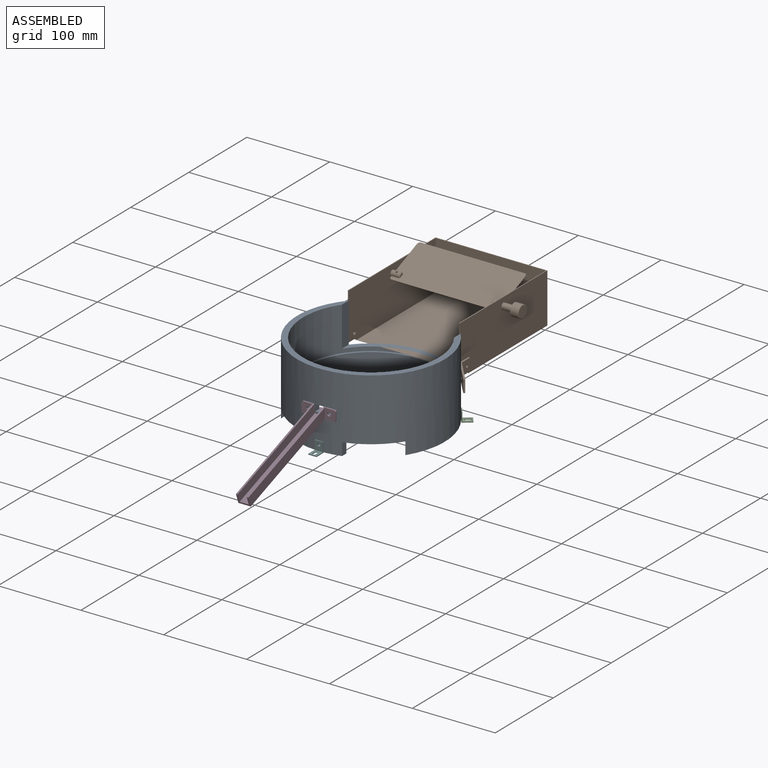
[diagram: assembled view]
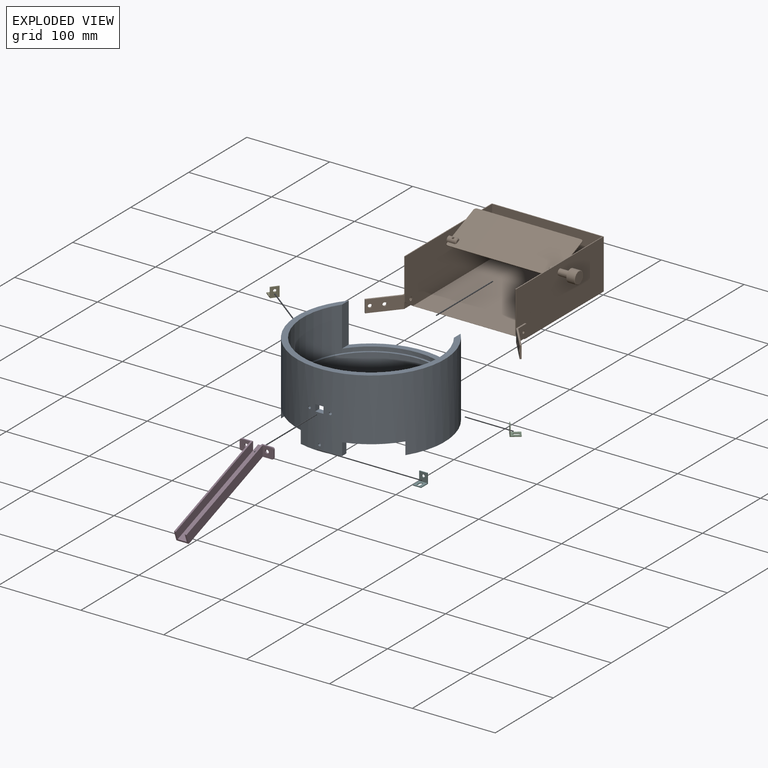
[diagram: exploded view]
GUIDED TOUR — MATED ASSEMBLY WITH SUBASSEMBLIES (Onshape document 57bd20f4359daa1161bebde2, AutoMate assembly 57bd20f4359daa1161bebde2_a42d9f43ae3d87441723566c_50306d4adee751ac4410a73a_default)

This assembly has 11 component occurrences arranged in 6 top-level units: 5 individual components plus 1 subassembly (S0). The tour has two levels: first the top level, where each subassembly is treated as one rigid unit; then each subassembly is toured internally in its own section (nesting deeper than one subassembly level is flattened into its subassembly's section).

Components are labeled P0..P10 across the whole record; subassembly units are labeled S0..S0. A mate is a constraint between two units; its type names the relative motion it leaves free:
  FASTENED — locks the two components together rigidly (no relative motion),
  REVOLUTE — leaves rotation about the listed axis free (a hinge).
Axis/direction vectors are unit vectors and 'through' points are millimeter coordinates, both in the assembly's world frame.

TOP-LEVEL MATES (between units; each subassembly's internal mates are listed in its own section)
  1. FASTENED "Fastened 1": P6 <-> P0, direction (0.000, 1.000, 0.000) through (-12.50, -88.38, 7.00) mm
  2. FASTENED "Fastened 4": P4 <-> P0, direction (-0.793, -0.609, 0.000) through (73.20, 50.81, -30.00) mm
  3. FASTENED "Fastened 5": P9 <-> P0, direction (0.000, 1.000, 0.000) through (0.00, -89.04, -30.00) mm
  4. FASTENED "Fastened 3": P8 <-> P0, direction (0.793, -0.609, 0.000) through (-73.20, 50.81, -30.00) mm

TOP-LEVEL ASSEMBLY ORDER
  1. P0 — the base component [order verified]
  2. S0 [order verified]
  3. P8 [order verified]
  4. P4 [order verified]
  5. P6 [order verified]
  6. P9 [order verified]
Order-tag legend:
  [order verified] — this step's position reverses a verified removal order: the component was checked to insert without passing through the ones already placed.

Of the 11 component occurrences, 4 carry the full construction recipe — the FeatureScript program that regenerates the part's solid from scratch; the rest are supplied as boundary geometry only. Each toured unit is shown spotlighted twice — assembled, then exploded with a leader line back to its socket (green = recipe-attached component, orange = geometry-only, blue = subassembly unit; the rest desaturated gray).
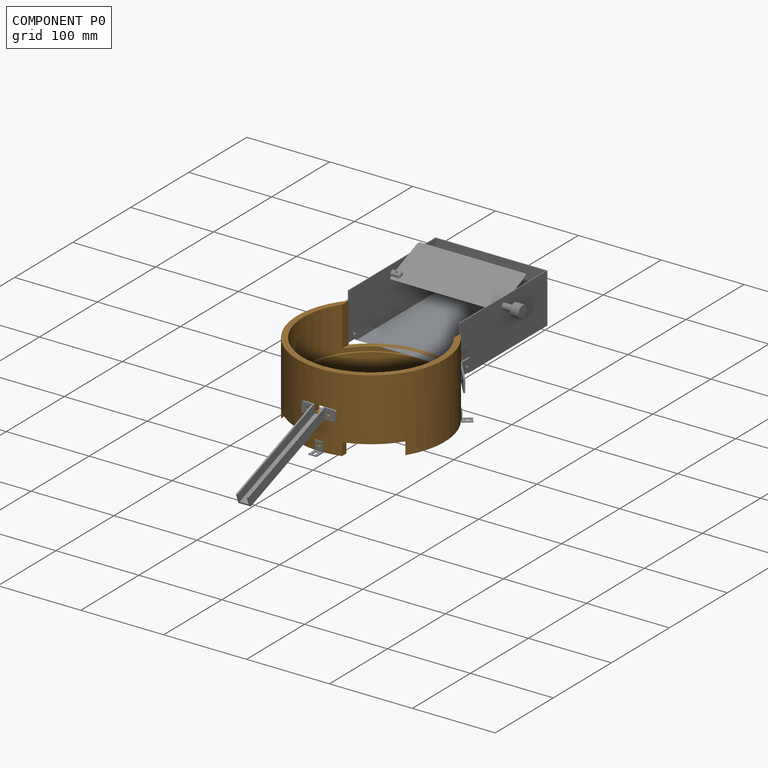
[diagram: component P0 — assembled]
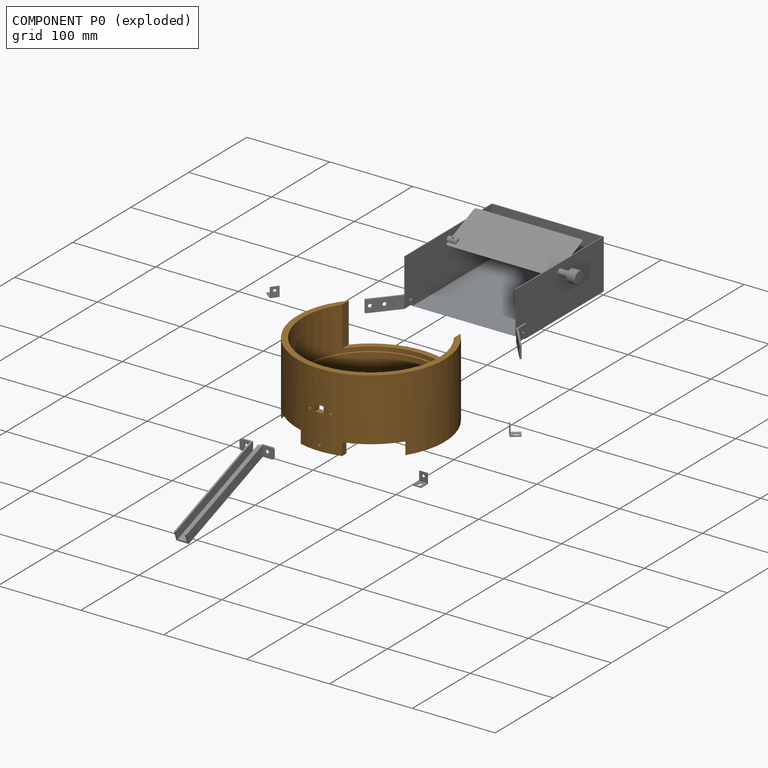
[diagram: component P0 — exploded]
COMPONENT P0 — geometry summary (no construction recipe available for this part):
  bounding box: 178.0 x 178.0 x 90.0 mm
  B-rep topology: 1 solid, 27 faces, 148 edges
  volume: 277693 mm^3 (10% of its bounding box)
  symmetry: mirror-symmetric across its x mid-plane
Held by: FASTENED mate "Fastened 1" to P6; FASTENED mate "Fastened 4" to P4; FASTENED mate "Fastened 5" to P9; FASTENED mate "Fastened 3" to P8.
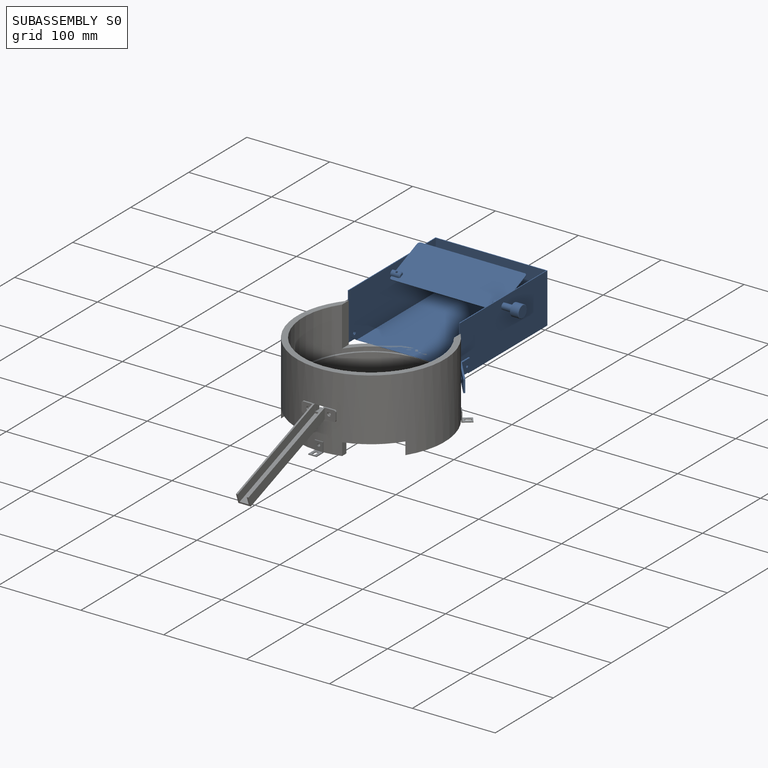
[diagram: subassembly S0 — assembled]
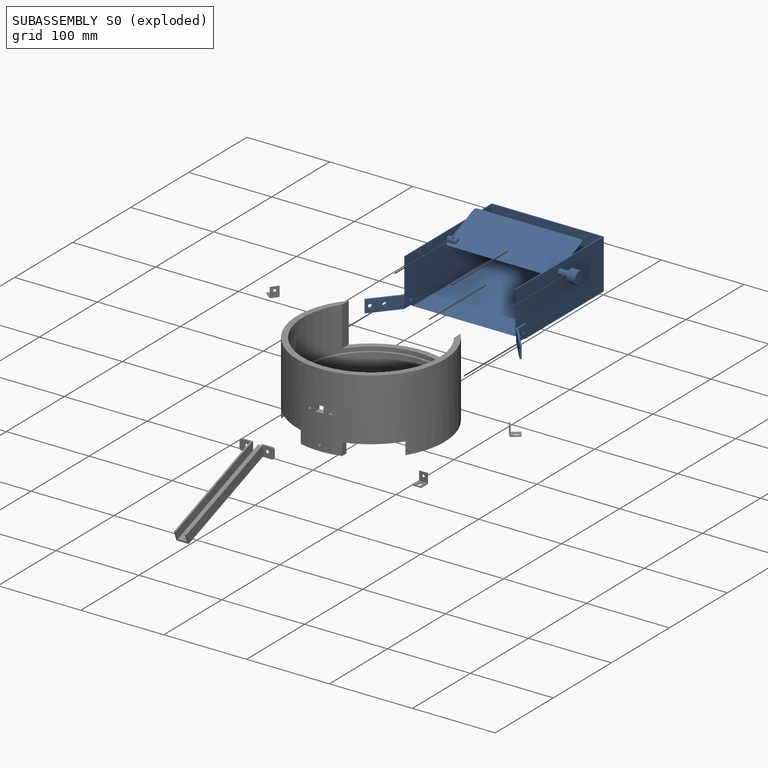
[diagram: subassembly S0 — exploded]
SUBASSEMBLY S0 — 6 components (P1, P2, P3, P5, P7, P10), of which 0 recipe-attached; toured below.
Held by: no mates (free).
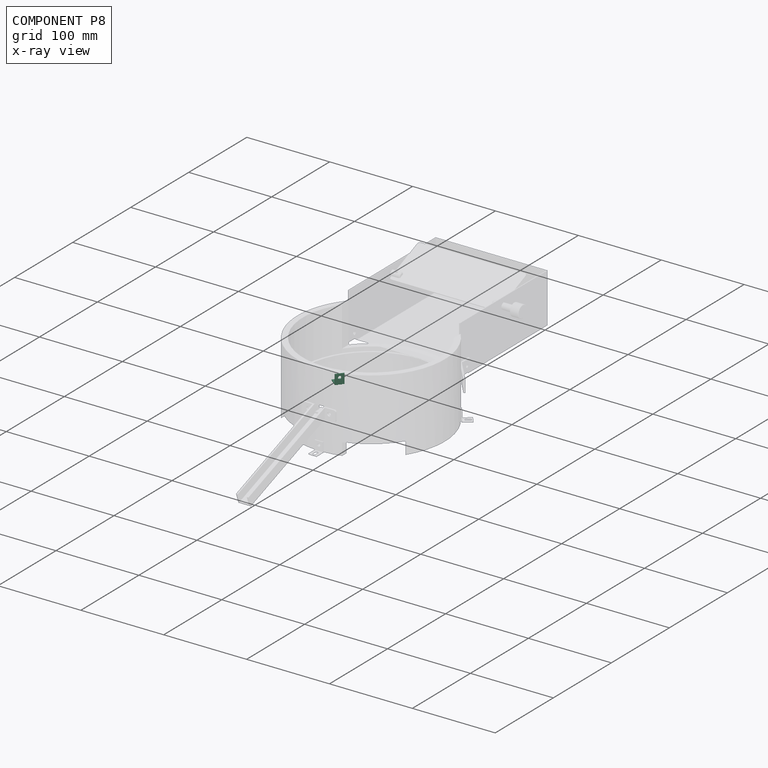
[diagram: component P8 — x-ray view]
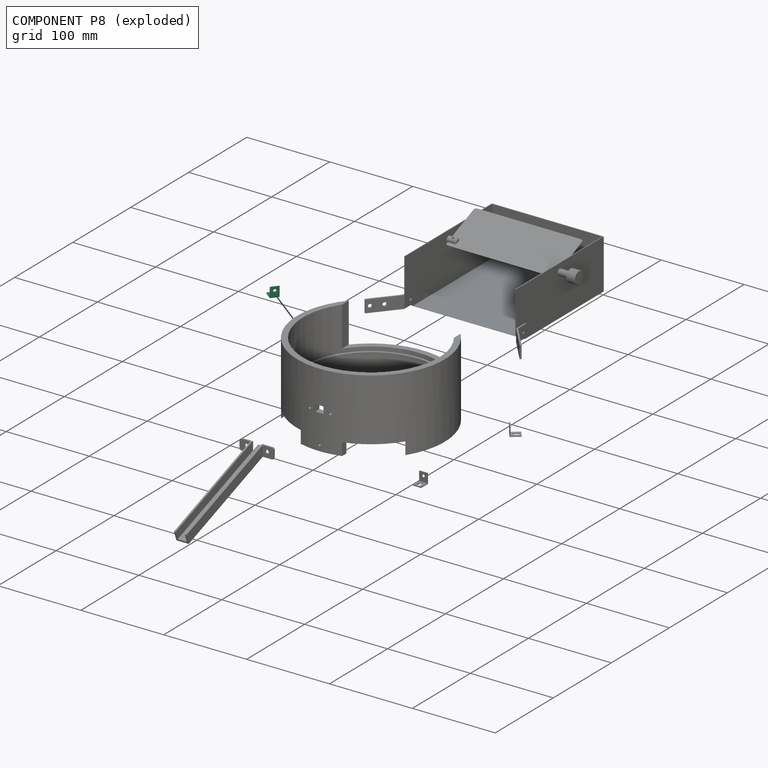
[diagram: component P8 — exploded]
COMPONENT P8 — same part as P4 (CADFS 00225050); its construction recipe is shown at P4.
Held by: FASTENED mate "Fastened 3" to P0.
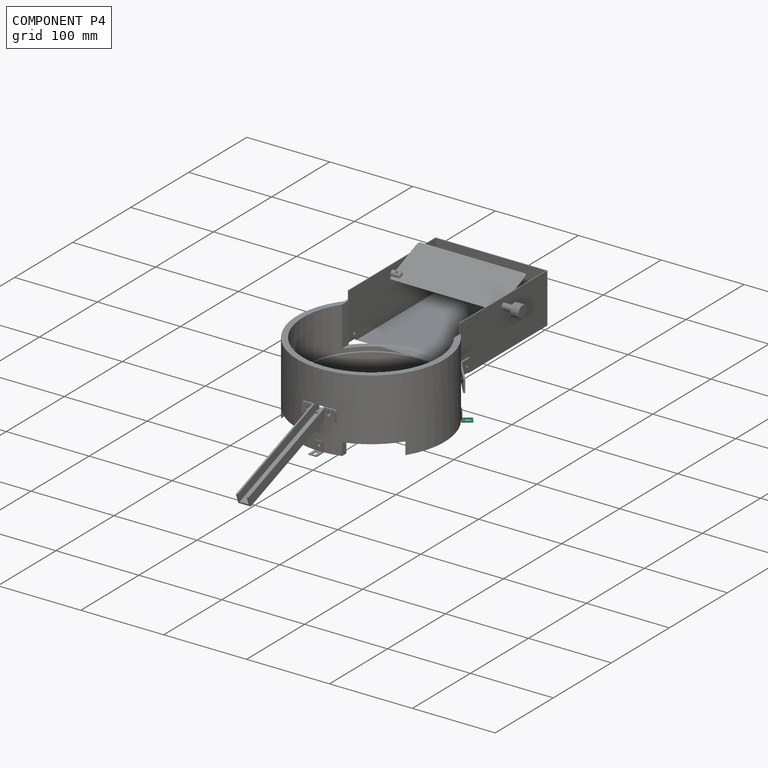
[diagram: component P4 — assembled]
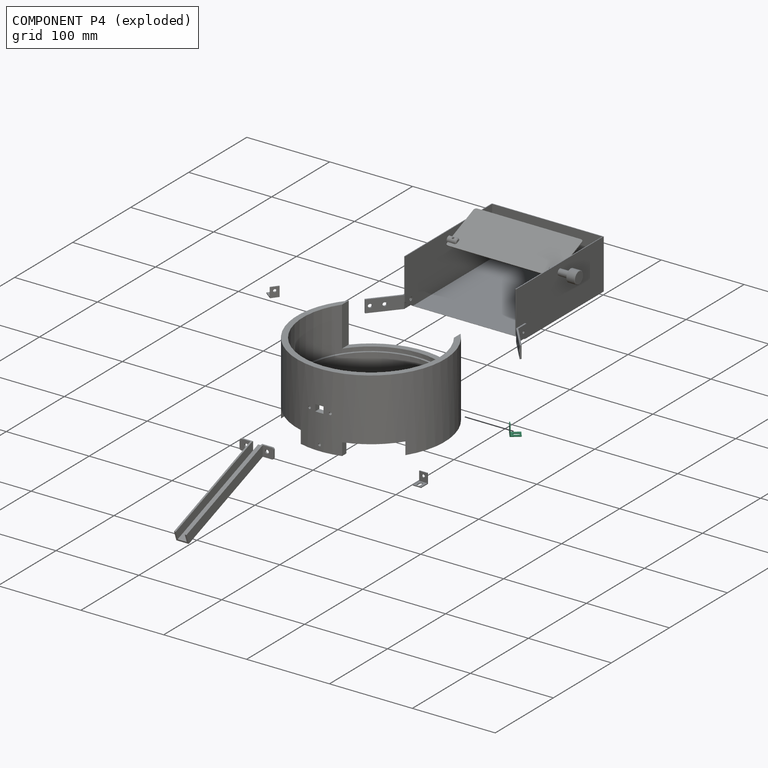
[diagram: component P4 — exploded]
COMPONENT P4 — recipe-attached (CADFS 00225050, mesh-verified: the recipe's output STEP matches this component's geometry to below the mesh-comparison resolution (tessellation chordal tolerance ~0.0295 mm)).
Held by: FASTENED mate "Fastened 4" to P0.
Construction recipe (FeatureScript — the CAD program that rebuilds this solid; sketch coordinates are in the units given by the * unit suffixes, e.g. mm):

FeatureScript 1511;
import(path : "onshape/std/geometry.fs", version : "1511.0");
import(path : "onshape/std/common.fs", version : "1511.0");
const mm = millimeter;
const VERTEX = EntityType.VERTEX;
const EDGE = EntityType.EDGE;
const FACE = EntityType.FACE;
const BODY = EntityType.BODY;
function v(x, y){return vector(x, y);}
function OD(order){return orderDisambiguation(order);}
function OSD(set){return originalSetDisambiguation(set);}
function TD(topology){return topologyDisambiguation(topology);}
function TDD(query){return trueDependencyDisambiguation(query);}
function sQuery(a, b, c) {return sketchEntityQuery(a, b, c);}

annotation { "Feature Type Name" : "Feature", "Feature Type Description" : "" }
export const myFeature = defineFeature(function(context is Context, id is Id, definition is map)
    precondition{}
    {
        {
            var Q0;
            Q0=qCreatedBy(makeId("Top.planeOp"),FACE);
            var sketch = newSketch(context, id + "F0", { "sketchPlane" : qUnion([Q0])});
            skLineSegment(sketch, "E0", {"start": v(0, 0) * mm, "end": v(-12, 0) * mm});
            skLineSegment(sketch, "E1", {"start": v(-12, 0) * mm, "end": v(-12, 1) * mm});
            skLineSegment(sketch, "E2", {"start": v(-12, 1) * mm, "end": v(-1, 1) * mm});
            skLineSegment(sketch, "E3", {"start": v(-1, 1) * mm, "end": v(-1, 12) * mm});
            skLineSegment(sketch, "E4", {"start": v(-1, 12) * mm, "end": v(0, 12) * mm});
            skLineSegment(sketch, "E5", {"start": v(0, 12) * mm, "end": v(0, 0) * mm});
            skSolve(sketch);
        }
        {
            var Q0;
            Q0 = qSketchRegion(id + "F0", true);
            extrude(context, id + "F1", {"entities" : qUnion([Q0]), "depth" : 10 * mm});
        }
        {
            var Q0;
            Q0=makeQuery(id+"F1.opExtrude","SWEPT_FACE",FACE,{"disambiguationData":[OSD([sQuery(id+"F0.wireOp",EDGE,"E2")])]});
            var sketch = newSketch(context, id + "F2", { "sketchPlane" : qUnion([Q0])});
            skPoint(sketch, "E6.positionSnap0", {"position": v(12, 5) * mm});
            skArc(sketch, "E7", {"start": v(5, 6.75) * mm, "mid": v(3.25, 5) * mm, "end": v(5, 3.25) * mm});
            skArc(sketch, "E8", {"start": v(9, 3.25) * mm, "mid": v(10.75, 5) * mm, "end": v(9, 6.75) * mm});
            skLineSegment(sketch, "E9", {"start": v(5, 6.75) * mm, "end": v(9, 6.75) * mm});
            skLineSegment(sketch, "E10", {"start": v(9, 3.25) * mm, "end": v(5, 3.25) * mm});
            skSolve(sketch);
        }
        {
            var Q0;
            Q0=makeQuery(id+"F1.opExtrude","SWEPT_FACE",FACE,{"disambiguationData":[OSD([sQuery(id+"F0.wireOp",EDGE,"E3")])]});
            var sketch = newSketch(context, id + "F3", { "sketchPlane" : qUnion([Q0])});
            skPoint(sketch, "E11", {"position": v(-7.5, 5) * mm});
            skPoint(sketch, "E11.positionSnap0", {"position": v(-12, 5) * mm});
            skSolve(sketch);
        }
        {
            var Q0;
            Q0=sQuery(id+"F3.wireOp",VERTEX,"E11");
            var Q1;
            Q1=makeQuery(id+"F1.opExtrude","SWEPT_BODY",BODY,{"disambiguationData":[OSD([sQuery(id+"F0.wireOp",EDGE,"E0"),sQuery(id+"F0.wireOp",EDGE,"E1"),sQuery(id+"F0.wireOp",EDGE,"E2"),sQuery(id+"F0.wireOp",EDGE,"E3"),sQuery(id+"F0.wireOp",EDGE,"E4"),sQuery(id+"F0.wireOp",EDGE,"E5")])]});
            hole(context, id + "F4", {"style" : HoleStyle.SIMPLE, "endStyle" : HoleEndStyle.THROUGH, "holeDiameter" : 3.5 * mm, "locations" : qUnion([Q0]), "scope" : qUnion([Q1]), "isTappedThrough" : true});
        }
        {
            var Q0;
            Q0=makeQuery(id+"F2.imprint","IMPRINT",FACE,{"disambiguationData":[TD([[makeQuery(id+"F2.imprint","IMPRINT",EDGE,{"derivedFrom":sQuery(id+"F2.wireOp",EDGE,"E7")}),1.0]])]});
            extrude(context, id + "F5", {"entities" : qUnion([Q0]), "operationType" : NewBodyOperationType.REMOVE, "oppositeDirection" : true, "depth" : 25 * mm});
        }
    });
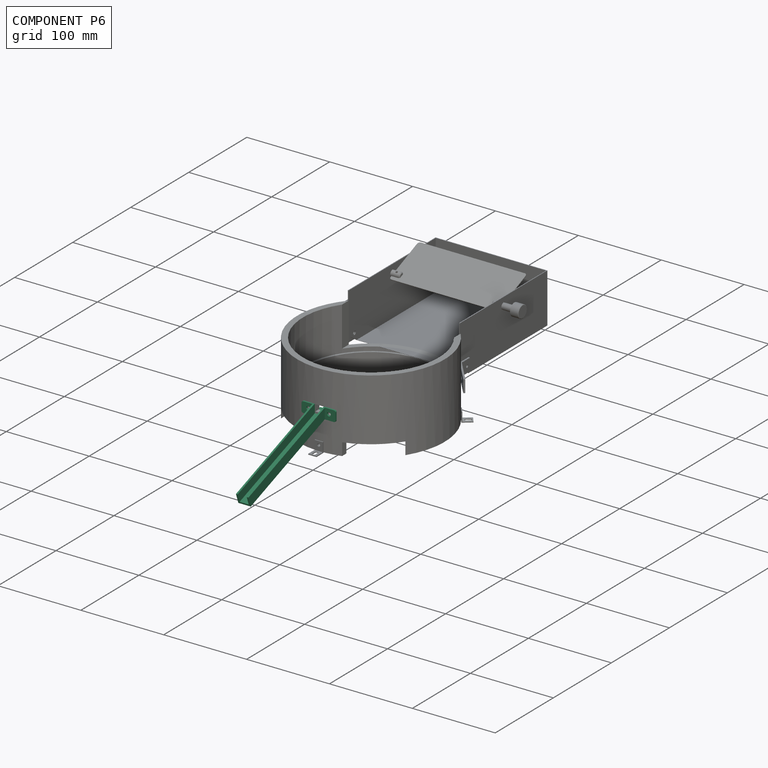
[diagram: component P6 — assembled]
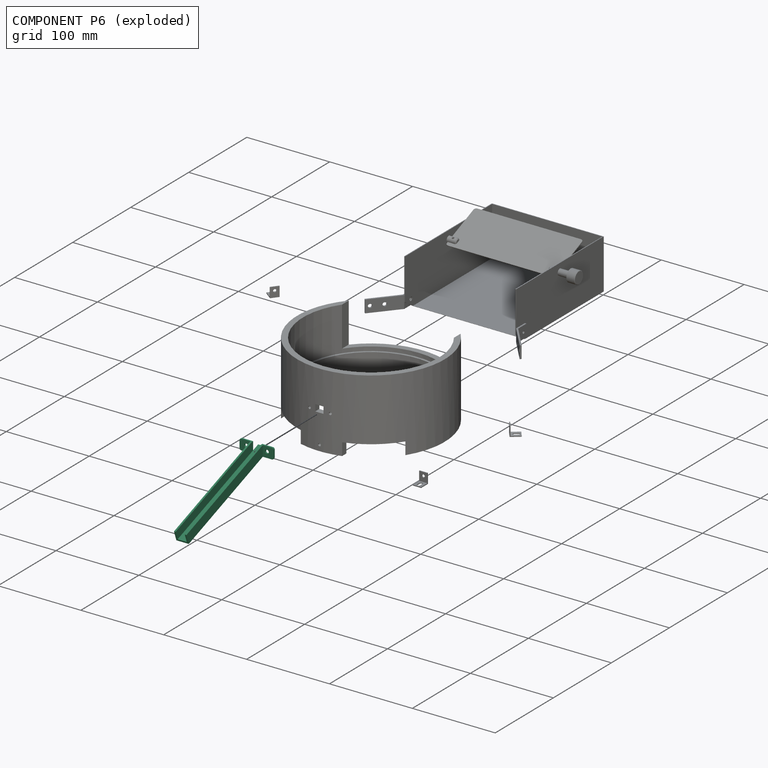
[diagram: component P6 — exploded]
COMPONENT P6 — recipe-attached (CADFS 00225053, mesh-verified: the recipe's output STEP matches this component's geometry to below the mesh-comparison resolution (tessellation chordal tolerance ~0.231 mm)).
Held by: FASTENED mate "Fastened 1" to P0.
Construction recipe (FeatureScript — the CAD program that rebuilds this solid; sketch coordinates are in the units given by the * unit suffixes, e.g. mm):

FeatureScript 1511;
import(path : "onshape/std/geometry.fs", version : "1511.0");
import(path : "onshape/std/common.fs", version : "1511.0");
const mm = millimeter;
const VERTEX = EntityType.VERTEX;
const EDGE = EntityType.EDGE;
const FACE = EntityType.FACE;
const BODY = EntityType.BODY;
function v(x, y){return vector(x, y);}
function OD(order){return orderDisambiguation(order);}
function OSD(set){return originalSetDisambiguation(set);}
function TD(topology){return topologyDisambiguation(topology);}
function TDD(query){return trueDependencyDisambiguation(query);}
function sQuery(a, b, c) {return sketchEntityQuery(a, b, c);}

annotation { "Feature Type Name" : "Feature", "Feature Type Description" : "" }
export const myFeature = defineFeature(function(context is Context, id is Id, definition is map)
    precondition{}
    {
        {
            var Q0;
            Q0=qCreatedBy(makeId("Front.planeOp"),FACE);
            var sketch = newSketch(context, id + "F0", { "sketchPlane" : qUnion([Q0])});
            skLineSegment(sketch, "E0.bottom", {"start": v(-7.5, 12) * mm, "end": v(-5.5, 12) * mm});
            skLineSegment(sketch, "E0.top", {"start": v(-7.5, 0) * mm, "end": v(7.5, 0) * mm});
            skLineSegment(sketch, "E0.left", {"start": v(-7.5, 12) * mm, "end": v(-7.5, 0) * mm});
            skLineSegment(sketch, "E0.right", {"start": v(7.5, 12) * mm, "end": v(7.5, 0) * mm});
            skLineSegment(sketch, "E1", {"start": v(-5.5, 12) * mm, "end": v(-5.5, 2) * mm});
            skLineSegment(sketch, "E2", {"start": v(-5.5, 2) * mm, "end": v(5.5, 2) * mm});
            skLineSegment(sketch, "E3", {"start": v(5.5, 2) * mm, "end": v(5.5, 12) * mm});
            skLineSegment(sketch, "E4.trimOffspring", {"start": v(5.5, 12) * mm, "end": v(7.5, 12) * mm});
            skSolve(sketch);
        }
        {
            var Q0;
            Q0=qSketchRegion(id+"F0",true);
            extrude(context, id + "F1", {"entities" : qUnion([Q0]), "depth" : 140 * mm});
        }
        {
            var Q0;
            Q0=makeQuery(id+"F1.opExtrude","SWEPT_FACE",FACE,{"disambiguationData":[OSD([sQuery(id+"F0.wireOp",EDGE,"E0.left")])]});
            var sketch = newSketch(context, id + "F2", { "sketchPlane" : qUnion([Q0])});
            skLineSegment(sketch, "E5", {"start": v(0, 12) * mm, "end": v(4.37, 0) * mm});
            skLineSegment(sketch, "E6", {"start": v(4.37, 0) * mm, "end": v(0, 0) * mm});
            skLineSegment(sketch, "E7", {"start": v(0, 0) * mm, "end": v(0, 12) * mm});
            skSolve(sketch);
        }
        {
            var Q0;
            Q0=qSketchRegion(id+"F2",true);
            extrude(context, id + "F3", {"entities" : qUnion([Q0]), "operationType" : NewBodyOperationType.REMOVE, "oppositeDirection" : true, "depth" : 25 * mm});
        }
        {
            var Q0;
            Q0=makeQuery(id+"F3.boolean.opBoolean","COPY",FACE,{"derivedFrom":makeQuery(id+"F3.opExtrude","SWEPT_FACE",FACE,{"disambiguationData":[OSD([sQuery(id+"F2.wireOp",EDGE,"E5")])]})});
            var sketch = newSketch(context, id + "F4", { "sketchPlane" : qUnion([Q0])});
            skLineSegment(sketch, "E8.bottom", {"start": v(-5.5, 11.28) * mm, "end": v(-20.5, 11.28) * mm});
            skLineSegment(sketch, "E8.top", {"start": v(-5.5, -1.5) * mm, "end": v(-20.5, -1.5) * mm});
            skLineSegment(sketch, "E8.left", {"start": v(-5.5, 11.28) * mm, "end": v(-5.5, -1.5) * mm});
            skLineSegment(sketch, "E8.right", {"start": v(-20.5, 11.28) * mm, "end": v(-20.5, -1.5) * mm});
            skLineSegment(sketch, "E9.bottom", {"start": v(5.5, 11.28) * mm, "end": v(20.5, 11.28) * mm});
            skLineSegment(sketch, "E9.top", {"start": v(5.5, -1.5) * mm, "end": v(20.5, -1.5) * mm});
            skLineSegment(sketch, "E9.left", {"start": v(5.5, 11.28) * mm, "end": v(5.5, -1.5) * mm});
            skLineSegment(sketch, "E9.right", {"start": v(20.5, 11.28) * mm, "end": v(20.5, -1.5) * mm});
            skSolve(sketch);
        }
        {
            var Q0;
            Q0 = qSketchRegion(id + "F4", true);
            extrude(context, id + "F5", {"entities" : qUnion([Q0]), "operationType" : NewBodyOperationType.ADD, "depth" : 2 * mm});
        }
        {
            var Q0;
            Q0=makeQuery(id+"F5.opExtrude","SWEPT_EDGE",EDGE,{"disambiguationData":[OSD([sQuery(id+"F4.wireOp",EDGE,"E8.bottom"),sQuery(id+"F4.wireOp",EDGE,"E8.right")])]});
            var Q1;
            Q1=makeQuery(id+"F5.opExtrude","SWEPT_EDGE",EDGE,{"disambiguationData":[OSD([sQuery(id+"F4.wireOp",EDGE,"E9.bottom"),sQuery(id+"F4.wireOp",EDGE,"E9.right")])]});
            var Q2;
            Q2=makeQuery(id+"FAph9uxltRurJvv_1.opExtrude","CAP_EDGE",EDGE,{"disambiguationData":[OSD([sQuery(id+"Fnsm4xSgVClunSC_1.wireOp",EDGE,"w1TH2Y56-oDBd-SurU-cjZt-78lEezf8W6AD.right")])],"isStart":false});
            var Q3;
            Q3=makeQuery(id+"FAph9uxltRurJvv_1.opExtrude","CAP_EDGE",EDGE,{"disambiguationData":[OSD([sQuery(id+"Fnsm4xSgVClunSC_1.wireOp",EDGE,"w1TH2Y56-oDBd-SurU-cjZt-78lEezf8W6AD.left")])],"isStart":false});
            var Q4;
            Q4=makeQuery(id+"F5.opExtrude","SWEPT_EDGE",EDGE,{"disambiguationData":[OSD([sQuery(id+"F4.wireOp",EDGE,"E8.top"),sQuery(id+"F4.wireOp",EDGE,"E8.right")])]});
            var Q5;
            Q5=makeQuery(id+"F5.opExtrude","SWEPT_EDGE",EDGE,{"disambiguationData":[OSD([sQuery(id+"F4.wireOp",EDGE,"E9.top"),sQuery(id+"F4.wireOp",EDGE,"E9.right")])]});
            fillet(context, id + "F6", {"entities" : qUnion([Q0, Q1, Q2, Q3, Q4, Q5]), "radius" : 2 * mm, "tangentPropagation" : true, "allowEdgeOverflow" : false});
        }
        {
            var Q0;
            Q0=makeQuery(id+"F1.opExtrude","SWEPT_FACE",FACE,{"disambiguationData":[OSD([sQuery(id+"F0.wireOp",EDGE,"E0.top")])]});
            var sketch = newSketch(context, id + "F7", { "sketchPlane" : qUnion([Q0])});
            skLineSegment(sketch, "E10.bottom", {"start": v(-5.5, 4.37) * mm, "end": v(5.5, 4.37) * mm});
            skLineSegment(sketch, "E10.top", {"start": v(-5.5, -7.63) * mm, "end": v(5.5, -7.63) * mm});
            skLineSegment(sketch, "E10.left", {"start": v(-5.5, 4.37) * mm, "end": v(-5.5, -7.63) * mm});
            skLineSegment(sketch, "E10.right", {"start": v(5.5, 4.37) * mm, "end": v(5.5, -7.63) * mm});
            skSolve(sketch);
        }
        {
            var Q0;
            Q0=makeQuery(id+"F7.imprint","IMPRINT",FACE,{"disambiguationData":[TD([[makeQuery(id+"F7.imprint","IMPRINT",EDGE,{"derivedFrom":sQuery(id+"F7.wireOp",EDGE,"E10.bottom")}),1.0]])]});
            extrude(context, id + "F8", {"entities" : qUnion([Q0]), "operationType" : NewBodyOperationType.ADD, "oppositeDirection" : true, "depth" : 2 * mm});
        }
        {
            var Q0;
            Q0=makeQuery(id+"F8.opExtrude","SWEPT_FACE",FACE,{"disambiguationData":[OSD([sQuery(id+"F7.wireOp",EDGE,"E10.left")])]});
            var sketch = newSketch(context, id + "F9", { "sketchPlane" : qUnion([Q0])});
            skLineSegment(sketch, "E11.bottom", {"start": v(-7.63, 0) * mm, "end": v(7.07, 0) * mm});
            skLineSegment(sketch, "E11.top", {"start": v(-7.63, -1.85) * mm, "end": v(7.07, -1.85) * mm});
            skLineSegment(sketch, "E11.left", {"start": v(-7.63, 0) * mm, "end": v(-7.63, -1.85) * mm});
            skLineSegment(sketch, "E11.right", {"start": v(7.07, 0) * mm, "end": v(7.07, -1.85) * mm});
            skSolve(sketch);
        }
        {
            var Q0;
            Q0=makeQuery(id+"F9.imprint","IMPRINT",FACE,{"disambiguationData":[TD([[makeQuery(id+"F9.imprint","IMPRINT",EDGE,{"derivedFrom":sQuery(id+"F9.wireOp",EDGE,"E11.top")}),1.0]])]});
            extrude(context, id + "F10", {"entities" : qUnion([Q0]), "operationType" : NewBodyOperationType.REMOVE, "endBound" : BoundingType.SYMMETRIC, "depth" : 100 * mm});
        }
        {
            var Q0;
            Q0=makeQuery(id+"F5.opExtrude","CAP_FACE",FACE,{"disambiguationData":[OSD([sQuery(id+"F4.wireOp",EDGE,"E8.bottom"),sQuery(id+"F4.wireOp",EDGE,"E8.top"),sQuery(id+"F4.wireOp",EDGE,"E8.left"),sQuery(id+"F4.wireOp",EDGE,"E8.right")])],"isStart":false});
            var sketch = newSketch(context, id + "F11", { "sketchPlane" : qUnion([Q0])});
            skPoint(sketch, "E12", {"position": v(-12.5, 5.28) * mm});
            skPoint(sketch, "E13", {"position": v(12.5, 5.28) * mm});
            skSolve(sketch);
        }
        {
            var Q0;
            Q0=sQuery(id+"F11.wireOp",VERTEX,"E12");
            var Q1;
            Q1=sQuery(id+"F11.wireOp",VERTEX,"E13");
            var Q2;
            Q2=makeQuery(id+"F1.opExtrude","SWEPT_BODY",BODY,{"disambiguationData":[OSD([sQuery(id+"F0.wireOp",EDGE,"E0.bottom"),sQuery(id+"F0.wireOp",EDGE,"E0.top"),sQuery(id+"F0.wireOp",EDGE,"E0.left"),sQuery(id+"F0.wireOp",EDGE,"E0.right"),sQuery(id+"F0.wireOp",EDGE,"E1"),sQuery(id+"F0.wireOp",EDGE,"E2"),sQuery(id+"F0.wireOp",EDGE,"E3"),sQuery(id+"F0.wireOp",EDGE,"E4.trimOffspring")])]});
            hole(context, id + "F12", {"style" : HoleStyle.SIMPLE, "endStyle" : HoleEndStyle.THROUGH, "standardTappedOrClearance" : lookupTablePath({ "standard" : "ISO", "fit" : "Normal", "size" : "M4", "type" : "Clearance" }), "standardBlindInLast" : lookupTablePath({ "fit" : "Standard", "standard" : "ISO", "size" : "M4", "type" : "Clearance" }), "holeDiameter" : 4.4 * mm, "tappedDepth" : 12 * mm, "tapClearance" : 3, "locations" : qUnion([Q0, Q1]), "scope" : qUnion([Q2])});
        }
    });
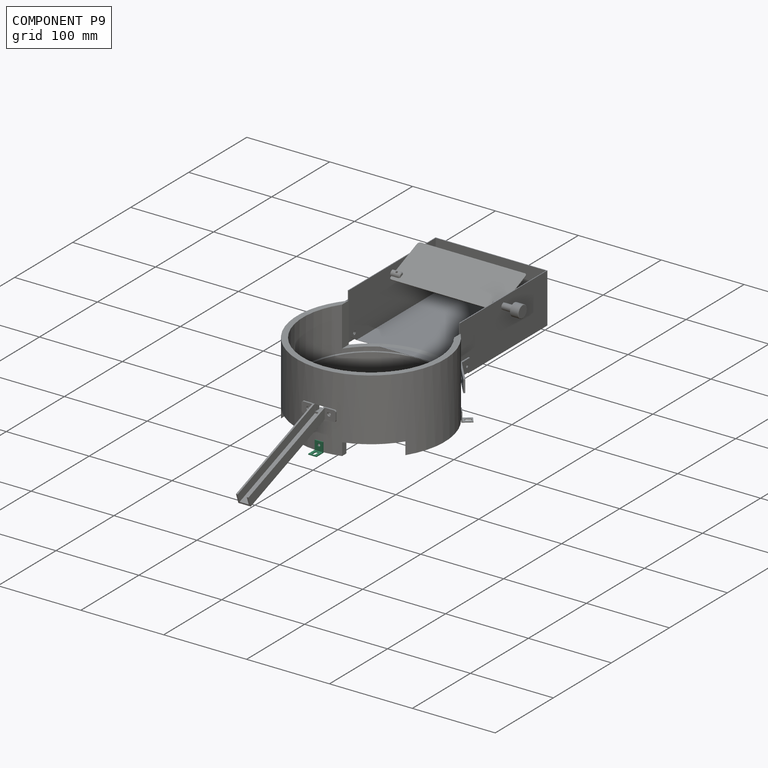
[diagram: component P9 — assembled]
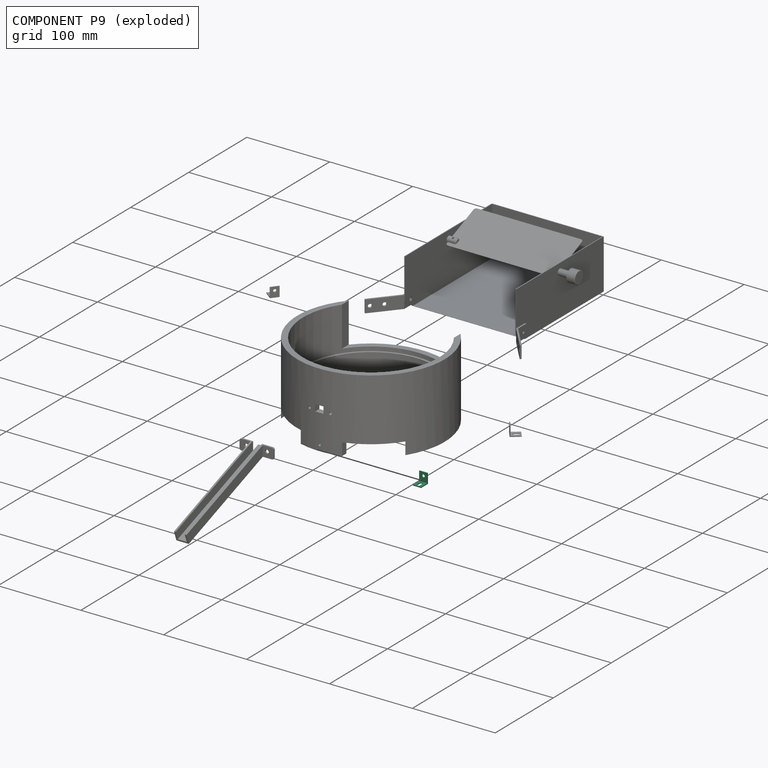
[diagram: component P9 — exploded]
COMPONENT P9 — same part as P4 (CADFS 00225050); its construction recipe is shown at P4.
Held by: FASTENED mate "Fastened 5" to P0.
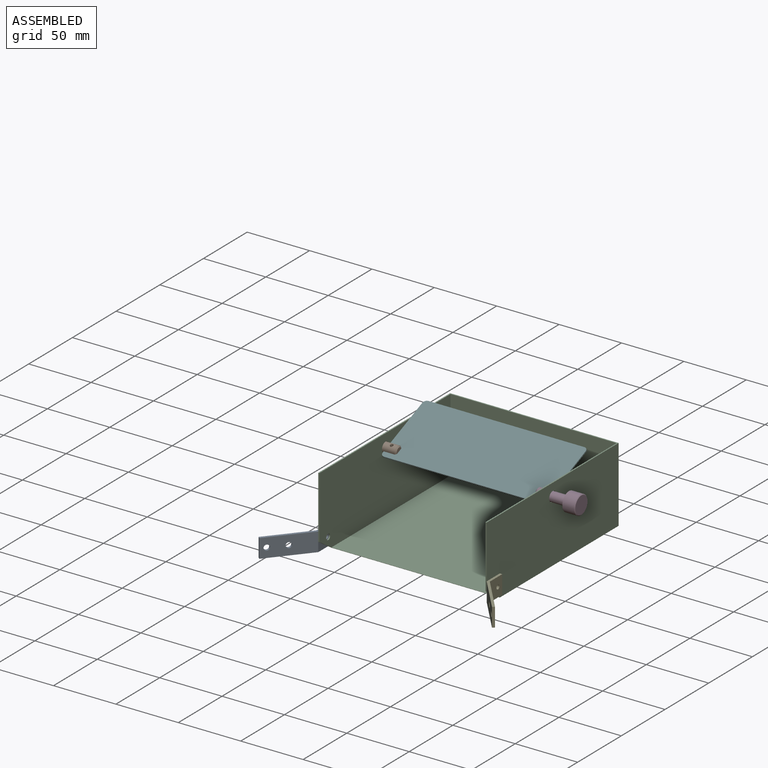
[diagram: subassembly S0 — assembled view]
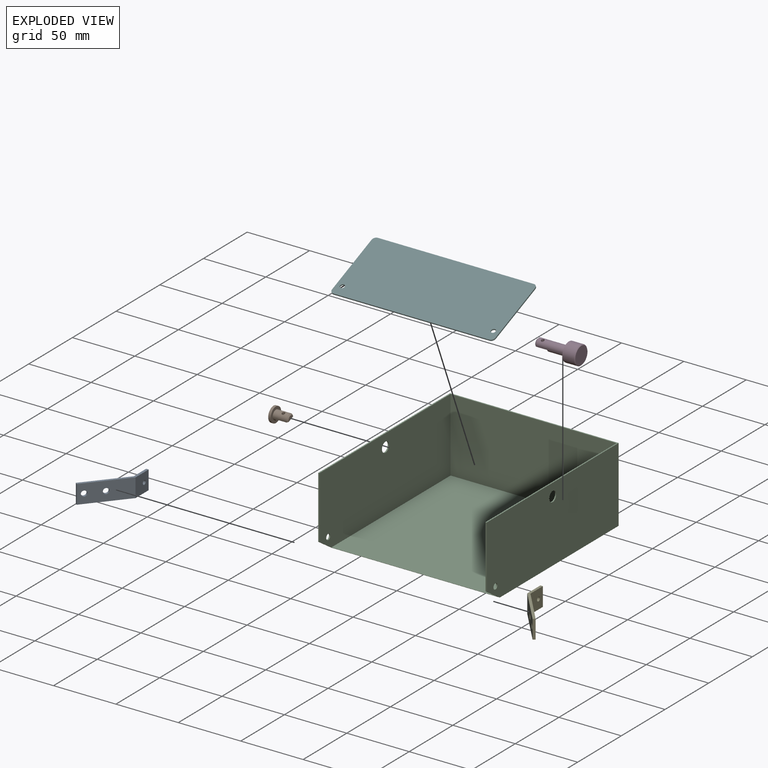
[diagram: subassembly S0 — exploded view]
SUBASSEMBLY S0 TOUR — 6 components, shown here in isolation at its own camera.

INTERNAL MATES
  1. REVOLUTE "Revolute 1": P2 <-> P3, axis (1.000, 0.000, 0.000) through (-68.50, 133.51, 54.00) mm
  2. FASTENED "Fastened 5": P7 <-> P3, direction (-1.000, 0.000, 0.000) through (66.50, 68.01, 14.00) mm
  3. FASTENED "Fastened 2": P10 <-> P2, direction (0.000, -0.382, 0.924) through (-61.50, 133.51, 54.00) mm
  4. FASTENED "Fastened 3": P5 <-> P10, direction (0.000, 0.382, -0.924) through (59.50, 133.51, 54.00) mm
  5. FASTENED "Fastened 4": P1 <-> P3, direction (1.000, 0.000, 0.000) through (-68.50, 68.01, 14.00) mm
  6. REVOLUTE "Revolute 1": P2 <-> P3, axis (1.000, 0.000, 0.000) through (-68.50, 133.51, 54.00) mm
  7. FASTENED "Fastened 4": P1 <-> P3, direction (1.000, 0.000, 0.000) through (-68.50, 68.01, 14.00) mm
  8. FASTENED "Fastened 5": P7 <-> P3, direction (-1.000, 0.000, 0.000) through (66.50, 68.01, 14.00) mm
  9. FASTENED "Fastened 3": P5 <-> P10, direction (0.000, 0.382, -0.924) through (59.50, 133.51, 54.00) mm
  10. FASTENED "Fastened 2": P10 <-> P2, direction (0.000, -0.382, 0.924) through (-61.50, 133.51, 54.00) mm

ASSEMBLY ORDER (within the subassembly)
  1. P3 — the base component [order heuristic]
  2. P2 — core [order heuristic]
  3. P10 [order verified]
  4. P5 [order verified]
  5. P7 [order verified]
  6. P1 [order verified]
(P10 verified with a relaxed clearance tolerance: the source model stores slight part interference there.)
Order-tag legend:
  [order verified] — this step's position reverses a verified removal order: the component was checked to insert without passing through the ones already placed.
  [order heuristic] — the first 2 components form the assembly's core: parts whose collision-free extraction could not be verified, listed in mate-graph order.
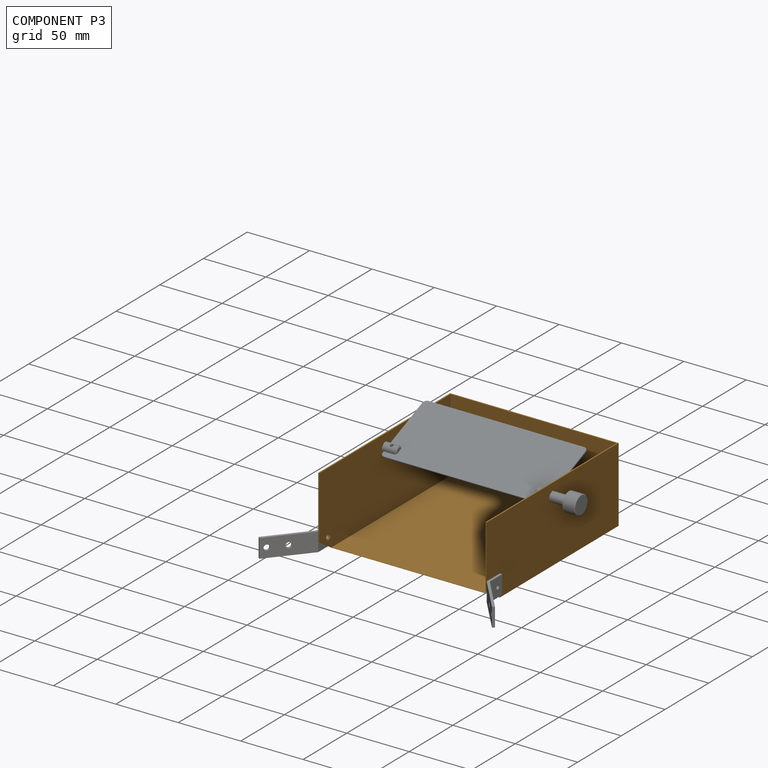
[diagram: component P3 — assembled]
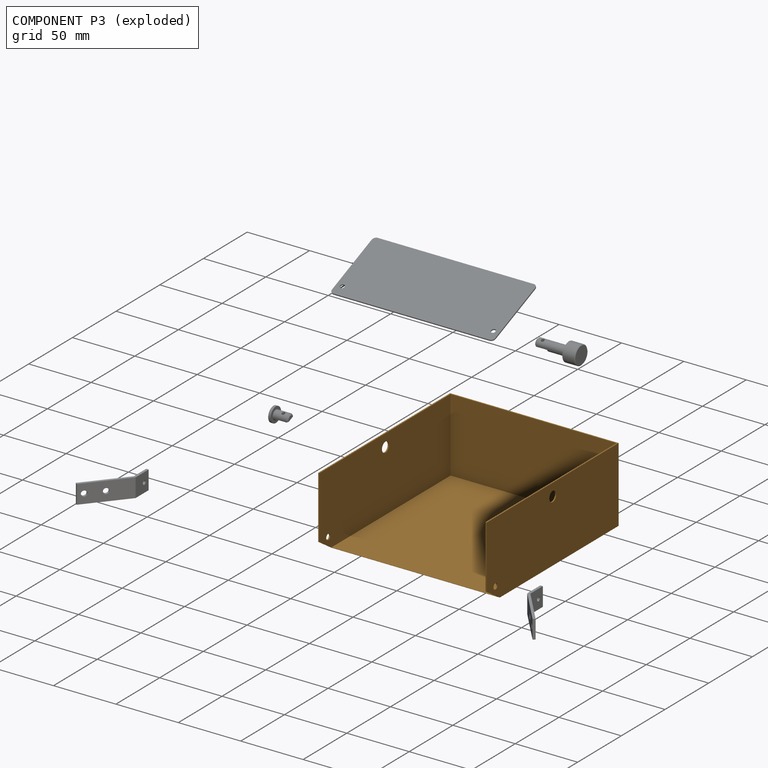
[diagram: component P3 — exploded]
COMPONENT P3 — geometry summary (no construction recipe available for this part):
  bounding box: 151.0 x 135.0 x 60.0 mm
  B-rep topology: 1 solid, 16 faces, 88 edges
  volume: 43872 mm^3 (4% of its bounding box)
  symmetry: mirror-symmetric across its x mid-plane
Held by: REVOLUTE mate "Revolute 1" to P2; FASTENED mate "Fastened 5" to P7; FASTENED mate "Fastened 4" to P1; REVOLUTE mate "Revolute 1" to P2; FASTENED mate "Fastened 4" to P1; FASTENED mate "Fastened 5" to P7.
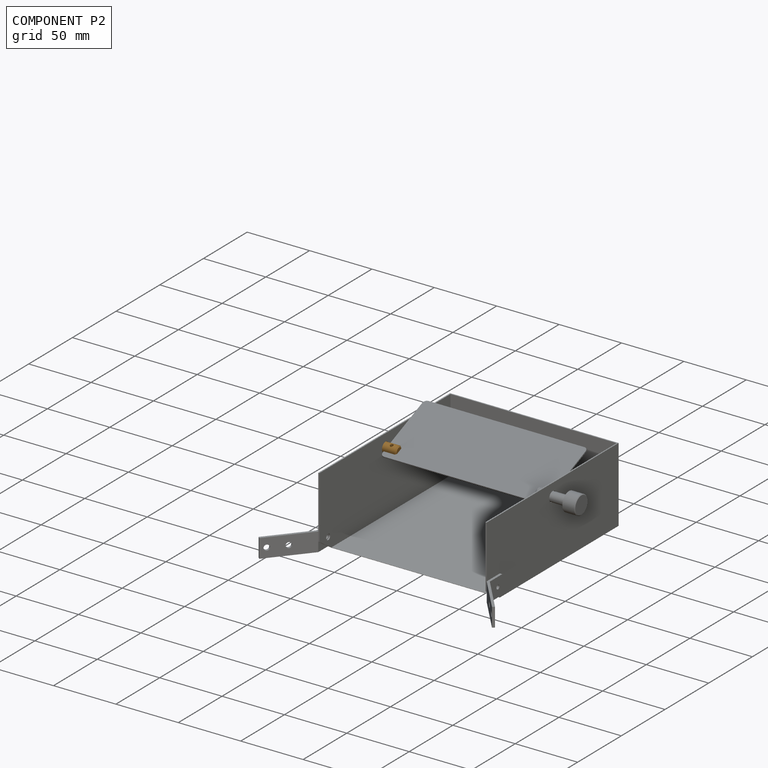
[diagram: component P2 — assembled]
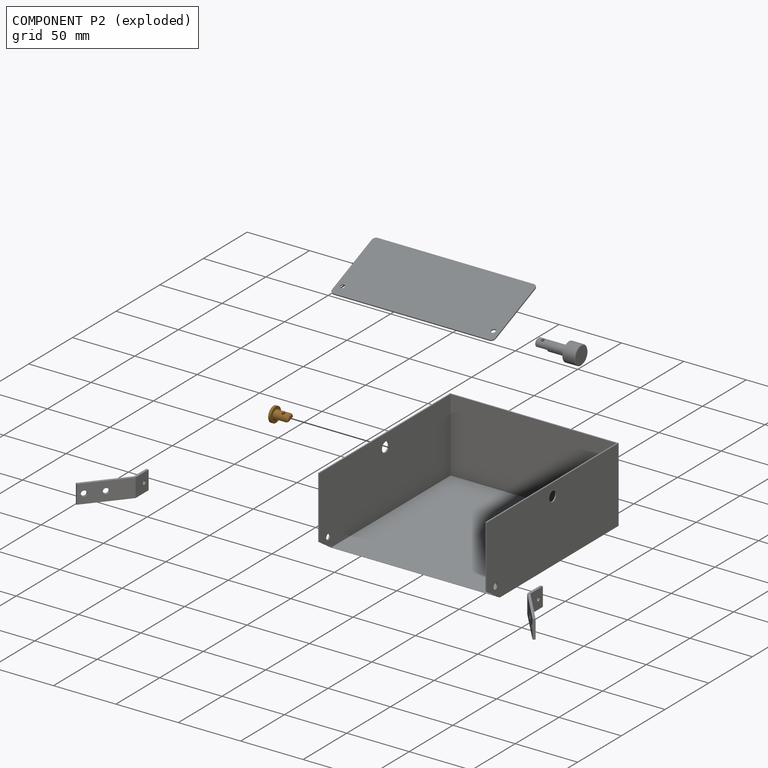
[diagram: component P2 — exploded]
COMPONENT P2 — geometry summary (no construction recipe available for this part):
  bounding box: 14.0 x 12.0 x 12.0 mm
  B-rep topology: 1 solid, 9 faces, 36 edges
  volume: 512 mm^3 (25% of its bounding box)
  symmetry: mirror-symmetric across its z mid-plane
Held by: REVOLUTE mate "Revolute 1" to P3; FASTENED mate "Fastened 2" to P10; REVOLUTE mate "Revolute 1" to P3; FASTENED mate "Fastened 2" to P10.
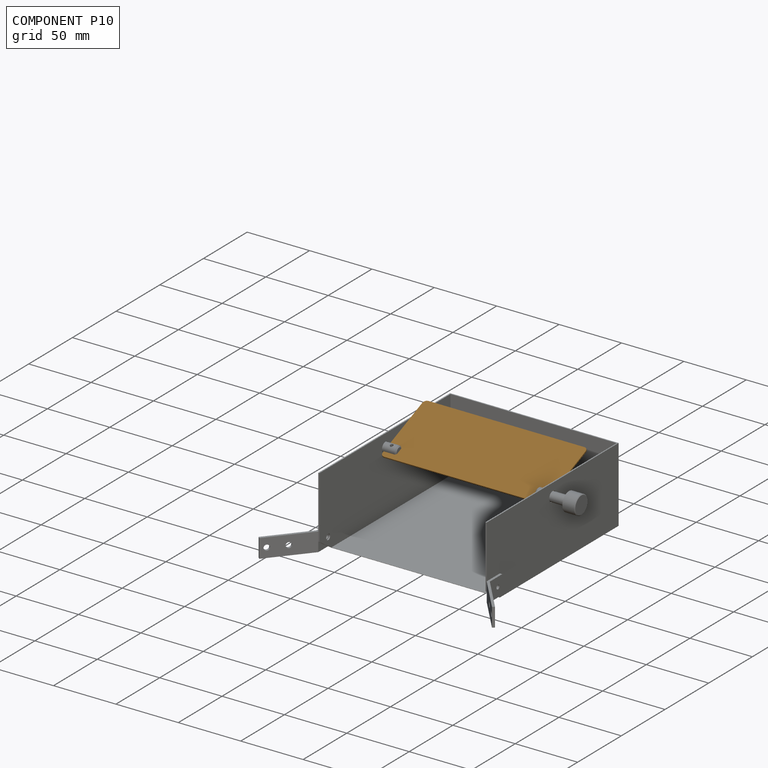
[diagram: component P10 — assembled]
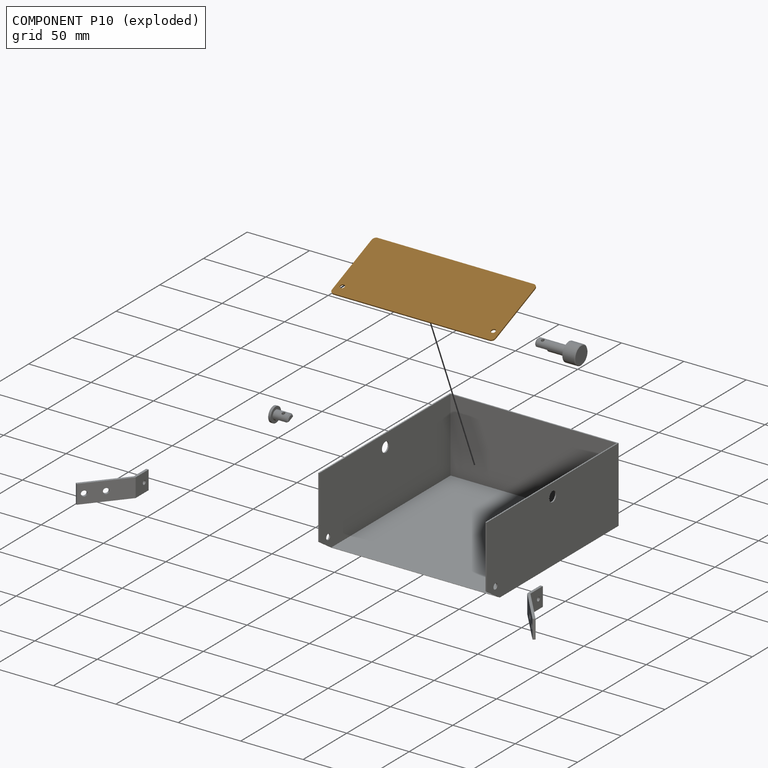
[diagram: component P10 — exploded]
COMPONENT P10 — geometry summary (no construction recipe available for this part):
  bounding box: 131.0 x 55.0 x 1.0 mm
  B-rep topology: 1 solid, 12 faces, 60 edges
  volume: 7178 mm^3 (100% of its bounding box)
  symmetry: 2-fold rotationally symmetric about the x axis; 2-fold rotationally symmetric about the y axis; 2-fold rotationally symmetric about the z axis; mirror-symmetric across its x mid-plane, y mid-plane, z mid-plane
Held by: FASTENED mate "Fastened 2" to P2; FASTENED mate "Fastened 3" to P5; FASTENED mate "Fastened 3" to P5; FASTENED mate "Fastened 2" to P2.
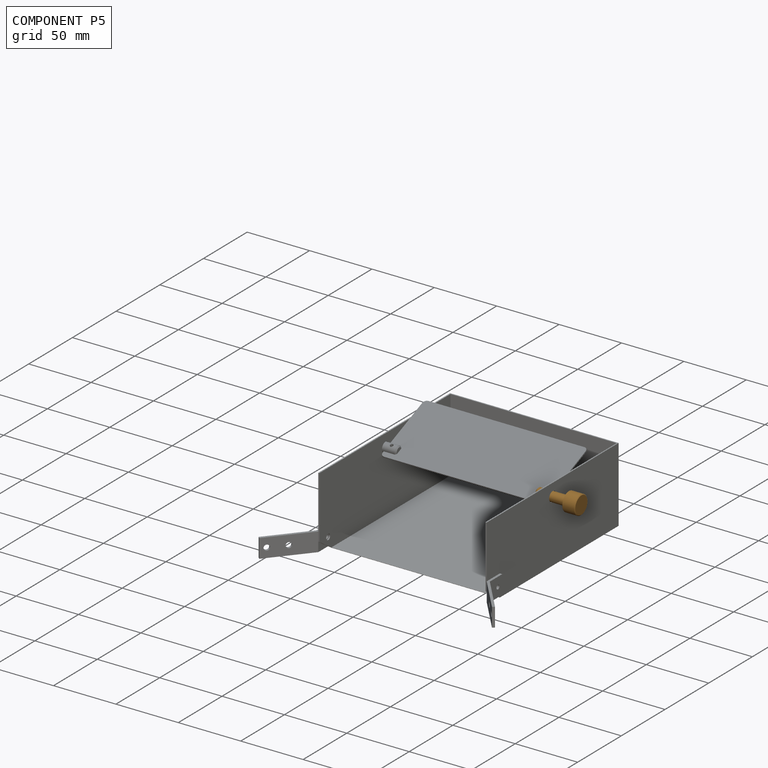
[diagram: component P5 — assembled]
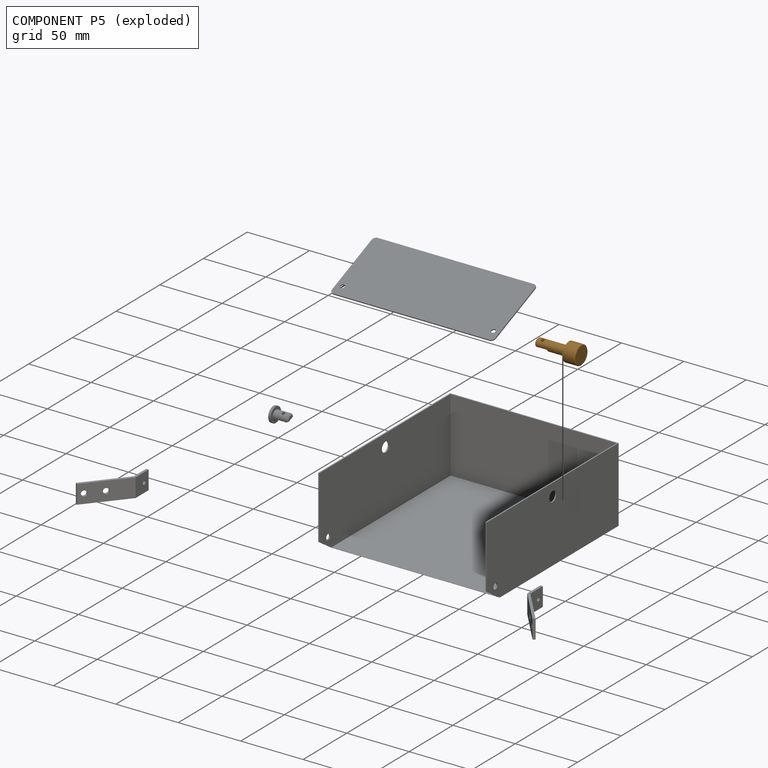
[diagram: component P5 — exploded]
COMPONENT P5 — geometry summary (no construction recipe available for this part):
  bounding box: 35.0 x 15.0 x 15.0 mm
  B-rep topology: 1 solid, 12 faces, 48 edges
  volume: 2558 mm^3 (32% of its bounding box)
  symmetry: mirror-symmetric across its z mid-plane
Held by: FASTENED mate "Fastened 3" to P10; FASTENED mate "Fastened 3" to P10.
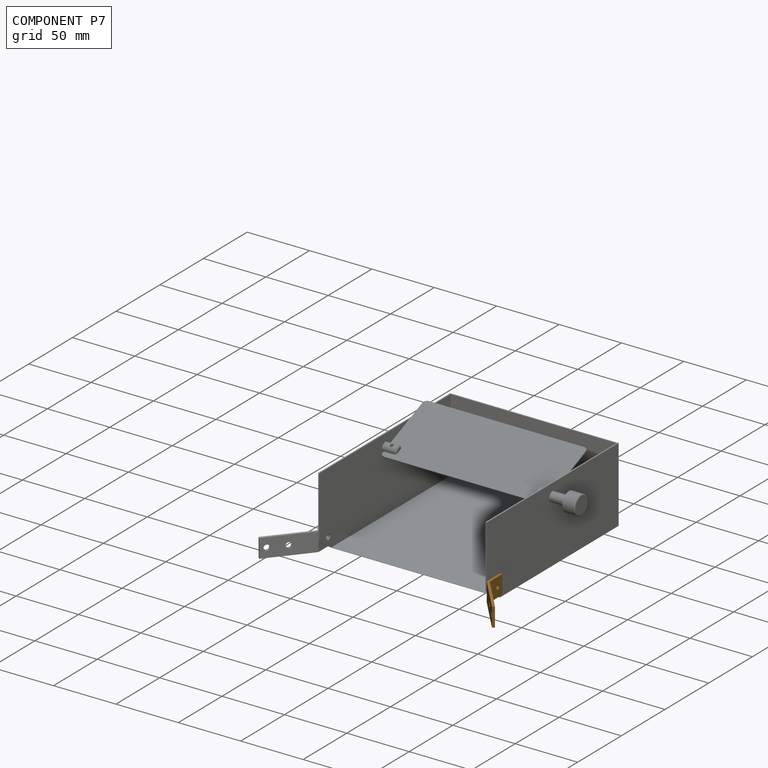
[diagram: component P7 — assembled]
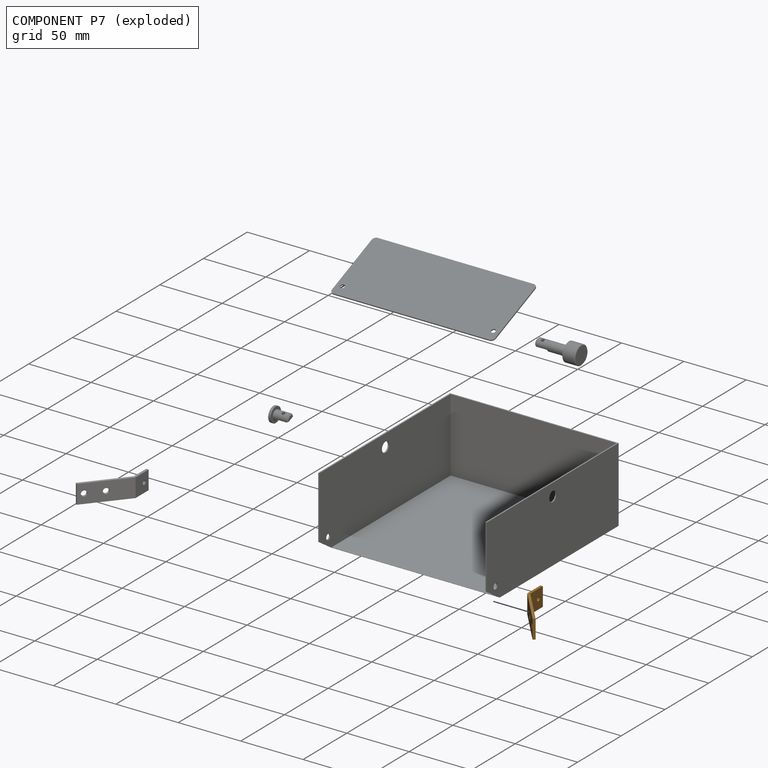
[diagram: component P7 — exploded]
COMPONENT P7 — geometry summary (no construction recipe available for this part):
  bounding box: 45.6 x 27.2 x 15.0 mm
  B-rep topology: 1 solid, 11 faces, 60 edges
  volume: 1550 mm^3 (8% of its bounding box)
  symmetry: mirror-symmetric across its z mid-plane
Held by: FASTENED mate "Fastened 5" to P3; FASTENED mate "Fastened 5" to P3.
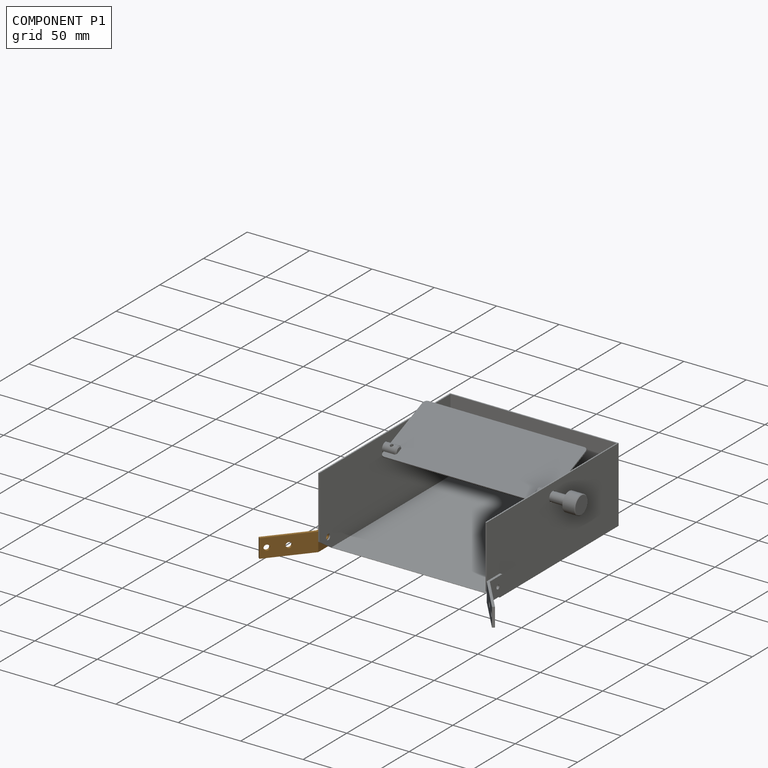
[diagram: component P1 — assembled]
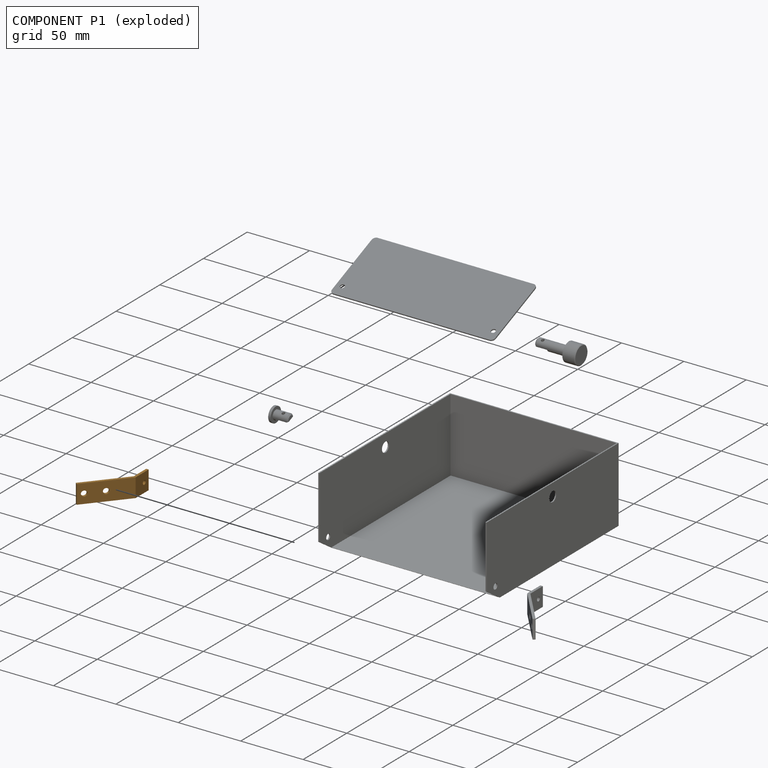
[diagram: component P1 — exploded]
COMPONENT P1 — geometry summary (no construction recipe available for this part):
  bounding box: 45.6 x 27.2 x 15.0 mm
  B-rep topology: 1 solid, 11 faces, 60 edges
  volume: 1550 mm^3 (8% of its bounding box)
  symmetry: mirror-symmetric across its z mid-plane
Held by: FASTENED mate "Fastened 4" to P3; FASTENED mate "Fastened 4" to P3.
PROVENANCE & LICENSES
Assembly (occurrences, transforms, mates, per-part STEP geometry): AutoMate dataset, Zenodo record 7776208, CC0.
Construction recipes: CADFS (HuggingFace VladPyatov/CADFS, CC-BY-4.0, layered over the ABC dataset), FeatureScript reconstruction programs keyed by ABC model id.
Join: ABC meta listings map ABC model id -> Onshape documentId; within a shared document, parts are matched by geometric signature (bounding-box dims + volume at 0.1% relative tolerance, exact B-rep face/solid counts).
Verification: 4 of this assembly's 11 components carry a recipe attachment, and every attachment is mesh-verified: the CADFS STEP and the AutoMate member STEP were compared as meshes in their shared local frame (symmetric sampled-point-to-mesh distance); worst across the 4 attachments: below the mesh-comparison resolution (tessellation chordal tolerance ~0.231 mm) on a 154 mm part.
Renders: orthographic iso camera (az 35 / el 25); the floor grid conveys scale (grid pitch printed in each image; no ruler). In the exploded view each component is displaced by its stored offset vector: the offsets alone carry the explosion direction (mate normal/axis signs are not orientation cues and do not encode it), and separation distances are assigned per mate-chain, not proportionally to assembly-order depth.
